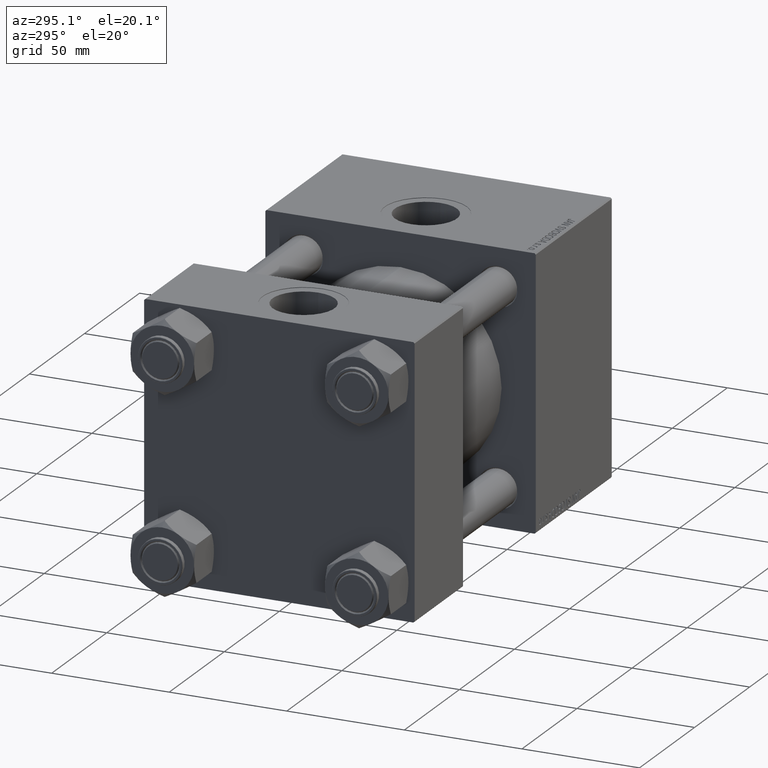
[diagram: clean part render]
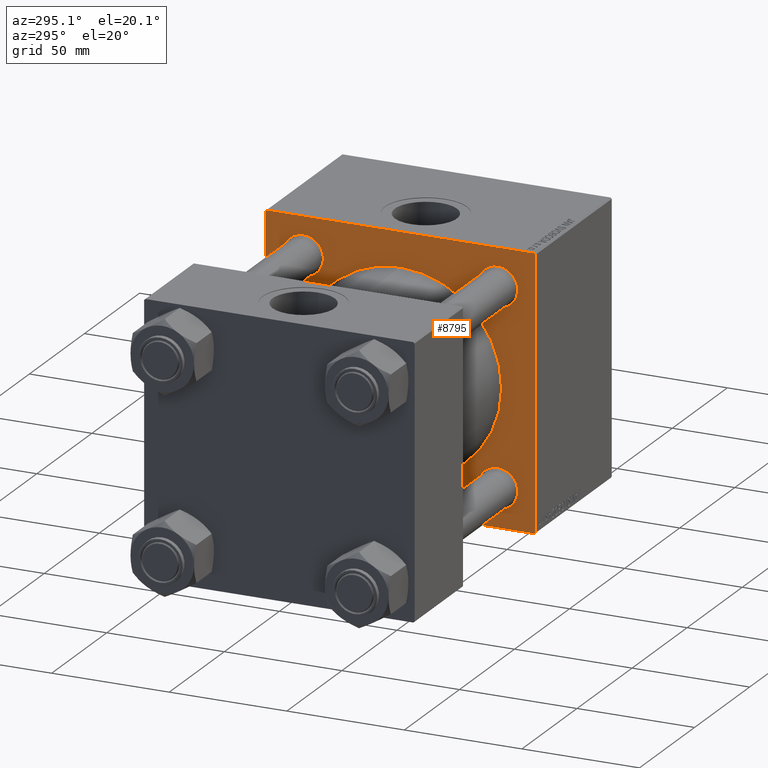
[diagram: same view with one face highlighted and labeled with its STEP entity id]
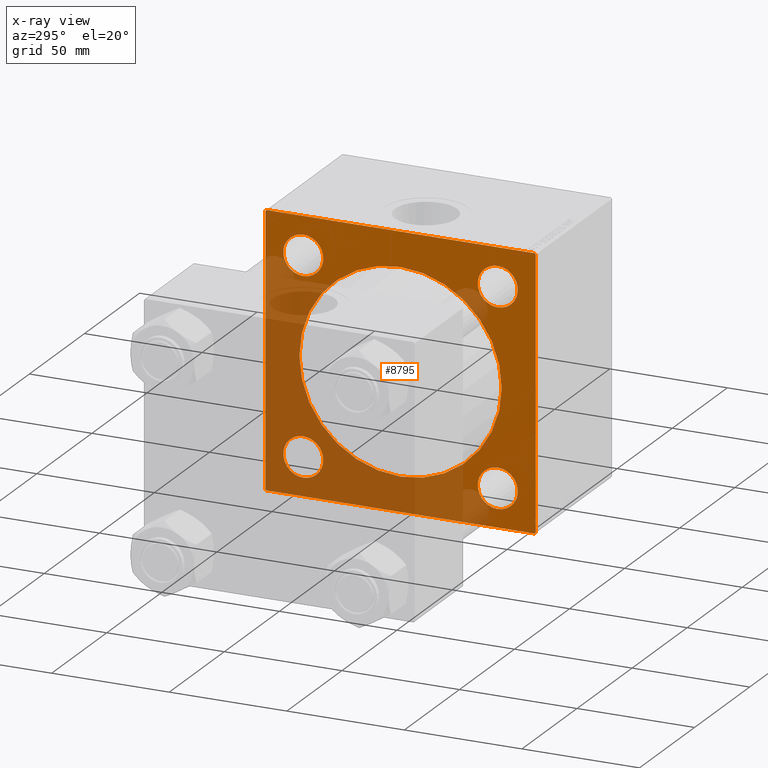
[diagram: x-ray of the same camera — body ghosted, the highlighted face saturated]
A machine part, auxiliary view. The second image highlights one B-rep face of the part: STEP entity #8795.
The next image is the same camera in x-ray: the body ghosted, the highlighted face saturated — about 46% of this face is hidden behind the body in this view.
In plain terms, the highlighted planar face has unit normal (-1, 0, 0).
Its self-contained STEP definition (entity closure, byte-faithful):
#392 = CARTESIAN_POINT ( 'NONE',  ( 110.0000000000000000, 41.34999999999999432, -41.35000000000000142 ) ) ;
#714 = AXIS2_PLACEMENT_3D ( 'NONE', #10741, #14341, #7134 ) ;
#852 = CIRCLE ( 'NONE', #29531, 43.00000000000000000 ) ;
#1827 = DIRECTION ( 'NONE',  ( 0.000000000000000000, 0.7071067811865672237, -0.7071067811865279218 ) ) ;
#2166 = VERTEX_POINT ( 'NONE', #24814 ) ;
#2169 = VECTOR ( 'NONE', #44819, 1000.000000000000000 ) ;
#3007 = AXIS2_PLACEMENT_3D ( 'NONE', #38558, #6696, #14914 ) ;
#3087 = DIRECTION ( 'NONE',  ( 0.000000000000000000, -1.000000000000000000, -1.206764157201257291E-16 ) ) ;
#3798 = LINE ( 'NONE', #39266, #33658 ) ;
#4489 = DIRECTION ( 'NONE',  ( -0.000000000000000000, -0.7071067811865279218, -0.7071067811865672237 ) ) ;
#4784 = EDGE_CURVE ( 'NONE', #38209, #32217, #21008, .T. ) ;
#4790 = CARTESIAN_POINT ( 'NONE',  ( 110.0000000000000000, -57.49999999999999289, 56.99999999999996447 ) ) ;
#5260 = LINE ( 'NONE', #44073, #2169 ) ;
#5384 = ORIENTED_EDGE ( 'NONE', *, *, #42421, .T. ) ;
#5386 = ORIENTED_EDGE ( 'NONE', *, *, #17811, .T. ) ;
#5511 = CIRCLE ( 'NONE', #7964, 8.500000000000007105 ) ;
#5620 = AXIS2_PLACEMENT_3D ( 'NONE', #21193, #12749, #8894 ) ;
#5678 = CARTESIAN_POINT ( 'NONE',  ( 110.0000000000000000, -57.49999999999999289, 57.49999999999999289 ) ) ;
#6579 = CARTESIAN_POINT ( 'NONE',  ( 110.0000000000000000, -41.34999999999998721, 49.85000000000002274 ) ) ;
#6696 = DIRECTION ( 'NONE',  ( 1.000000000000000000, -0.000000000000000000, 0.000000000000000000 ) ) ;
#7134 = DIRECTION ( 'NONE',  ( -0.000000000000000000, 0.000000000000000000, 1.000000000000000000 ) ) ;
#7454 = AXIS2_PLACEMENT_3D ( 'NONE', #24131, #11817, #7955 ) ;
#7671 = CIRCLE ( 'NONE', #21631, 8.500000000000007105 ) ;
#7910 = ORIENTED_EDGE ( 'NONE', *, *, #31926, .T. ) ;
#7955 = DIRECTION ( 'NONE',  ( 0.000000000000000000, 0.000000000000000000, 1.000000000000000000 ) ) ;
#7964 = AXIS2_PLACEMENT_3D ( 'NONE', #33619, #14354, #18457 ) ;
#8795 = ADVANCED_FACE ( 'NONE', ( #10228, #49530, #38241, #34621, #22798, #30504 ), #15103, .T. ) ;
#8894 = DIRECTION ( 'NONE',  ( 0.000000000000000000, 0.000000000000000000, -1.000000000000000000 ) ) ;
#8982 = VERTEX_POINT ( 'NONE', #47908 ) ;
#8995 = CARTESIAN_POINT ( 'NONE',  ( 110.0000000000000000, 41.34999999999999432, 49.85000000000001563 ) ) ;
#9451 = EDGE_CURVE ( 'NONE', #47577, #45058, #44224, .T. ) ;
#9499 = VERTEX_POINT ( 'NONE', #17098 ) ;
#10228 = FACE_BOUND ( 'NONE', #36465, .T. ) ;
#10741 = CARTESIAN_POINT ( 'NONE',  ( 110.0000000000000000, 0.000000000000000000, 0.000000000000000000 ) ) ;
#11050 = DIRECTION ( 'NONE',  ( 0.000000000000000000, 0.000000000000000000, 1.000000000000000000 ) ) ;
#11317 = CARTESIAN_POINT ( 'NONE',  ( 110.0000000000000000, 57.50000000000000000, 57.50000000000000711 ) ) ;
#11323 = LINE ( 'NONE', #43436, #14782 ) ;
#11817 = DIRECTION ( 'NONE',  ( 1.000000000000000000, -0.000000000000000000, 0.000000000000000000 ) ) ;
#12324 = ORIENTED_EDGE ( 'NONE', *, *, #44292, .T. ) ;
#12749 = DIRECTION ( 'NONE',  ( 1.000000000000000000, 0.000000000000000000, 0.000000000000000000 ) ) ;
#12977 = VERTEX_POINT ( 'NONE', #16418 ) ;
#13200 = VERTEX_POINT ( 'NONE', #4790 ) ;
#13340 = EDGE_LOOP ( 'NONE', ( #35105, #12324, #44576, #23606, #47406, #47871, #32586, #20752 ) ) ;
#13406 = VECTOR ( 'NONE', #1827, 1000.000000000000000 ) ;
#13630 = CARTESIAN_POINT ( 'NONE',  ( 110.0000000000000000, 57.50000000000000000, 57.50000000000000711 ) ) ;
#13902 = DIRECTION ( 'NONE',  ( 0.000000000000000000, 0.000000000000000000, -1.000000000000000000 ) ) ;
#14341 = DIRECTION ( 'NONE',  ( -1.000000000000000000, 0.000000000000000000, -0.000000000000000000 ) ) ;
#14354 = DIRECTION ( 'NONE',  ( 1.000000000000000000, -0.000000000000000000, 0.000000000000000000 ) ) ;
#14782 = VECTOR ( 'NONE', #31596, 1000.000000000000000 ) ;
#14914 = DIRECTION ( 'NONE',  ( 0.000000000000000000, 0.000000000000000000, 1.000000000000000000 ) ) ;
#15103 = PLANE ( 'NONE',  #714 ) ;
#15135 = EDGE_CURVE ( 'NONE', #18161, #30245, #30402, .T. ) ;
#15163 = LINE ( 'NONE', #11317, #25661 ) ;
#15905 = EDGE_CURVE ( 'NONE', #13200, #8982, #40886, .T. ) ;
#16418 = CARTESIAN_POINT ( 'NONE',  ( 110.0000000000000000, -56.99999999999995737, -57.49999999999997868 ) ) ;
#16510 = DIRECTION ( 'NONE',  ( 0.000000000000000000, 0.000000000000000000, -1.000000000000000000 ) ) ;
#16919 = ORIENTED_EDGE ( 'NONE', *, *, #4784, .T. ) ;
#17098 = CARTESIAN_POINT ( 'NONE',  ( 110.0000000000000000, 57.50000000000000000, -56.99999999999994316 ) ) ;
#17373 = ORIENTED_EDGE ( 'NONE', *, *, #36360, .T. ) ;
#17428 = VERTEX_POINT ( 'NONE', #50723 ) ;
#17811 = EDGE_CURVE ( 'NONE', #29533, #2166, #48565, .T. ) ;
#18150 = AXIS2_PLACEMENT_3D ( 'NONE', #18497, #38297, #11050 ) ;
#18161 = VERTEX_POINT ( 'NONE', #8995 ) ;
#18457 = DIRECTION ( 'NONE',  ( 0.000000000000000000, 0.000000000000000000, 1.000000000000000000 ) ) ;
#18497 = CARTESIAN_POINT ( 'NONE',  ( 110.0000000000000000, -41.34999999999998721, -41.35000000000000853 ) ) ;
#18694 = CARTESIAN_POINT ( 'NONE',  ( 110.0000000000000000, -41.34999999999998721, 32.85000000000000142 ) ) ;
#20151 = VECTOR ( 'NONE', #4489, 1000.000000000000000 ) ;
#20513 = ORIENTED_EDGE ( 'NONE', *, *, #49992, .T. ) ;
#20611 = EDGE_CURVE ( 'NONE', #17428, #28221, #45489, .T. ) ;
#20752 = ORIENTED_EDGE ( 'NONE', *, *, #28494, .T. ) ;
#20953 = CARTESIAN_POINT ( 'NONE',  ( 110.0000000000000000, 57.00000000000000000, -57.49999999999996447 ) ) ;
#21008 = CIRCLE ( 'NONE', #28390, 8.500000000000007105 ) ;
#21193 = CARTESIAN_POINT ( 'NONE',  ( 110.0000000000000000, -2.602085213965210642E-15, 0.000000000000000000 ) ) ;
#21631 = AXIS2_PLACEMENT_3D ( 'NONE', #44454, #24155, #39850 ) ;
#21882 = EDGE_CURVE ( 'NONE', #2166, #29533, #7671, .T. ) ;
#22246 = CIRCLE ( 'NONE', #18150, 8.500000000000007105 ) ;
#22424 = CARTESIAN_POINT ( 'NONE',  ( 110.0000000000000000, 41.34999999999999432, -32.84999999999999432 ) ) ;
#22798 = FACE_BOUND ( 'NONE', #48074, .T. ) ;
#22803 = DIRECTION ( 'NONE',  ( 0.000000000000000000, -1.000000000000000000, -1.206764157201257291E-16 ) ) ;
#23423 = EDGE_CURVE ( 'NONE', #17428, #35769, #15163, .T. ) ;
#23606 = ORIENTED_EDGE ( 'NONE', *, *, #24073, .T. ) ;
#23917 = VECTOR ( 'NONE', #13902, 1000.000000000000000 ) ;
#24073 = EDGE_CURVE ( 'NONE', #13200, #35769, #5260, .T. ) ;
#24131 = CARTESIAN_POINT ( 'NONE',  ( 110.0000000000000000, 41.34999999999999432, 41.35000000000000142 ) ) ;
#24155 = DIRECTION ( 'NONE',  ( 1.000000000000000000, -0.000000000000000000, 0.000000000000000000 ) ) ;
#24210 = CARTESIAN_POINT ( 'NONE',  ( 110.0000000000000000, -56.99999999999998579, 57.49999999999999289 ) ) ;
#24544 = VECTOR ( 'NONE', #39882, 1000.000000000000000 ) ;
#24814 = CARTESIAN_POINT ( 'NONE',  ( 110.0000000000000000, 41.34999999999999432, -49.85000000000001563 ) ) ;
#25451 = CARTESIAN_POINT ( 'NONE',  ( 110.0000000000000000, 57.24999999999840838, 57.25000000000159162 ) ) ;
#25661 = VECTOR ( 'NONE', #3087, 1000.000000000000000 ) ;
#27050 = AXIS2_PLACEMENT_3D ( 'NONE', #43433, #47530, #31079 ) ;
#27880 = CARTESIAN_POINT ( 'NONE',  ( 110.0000000000000000, 2.663896022368408223E-15, -43.00000000000000000 ) ) ;
#28086 = ORIENTED_EDGE ( 'NONE', *, *, #43244, .T. ) ;
#28221 = VERTEX_POINT ( 'NONE', #34614 ) ;
#28390 = AXIS2_PLACEMENT_3D ( 'NONE', #31105, #46786, #50640 ) ;
#28494 = EDGE_CURVE ( 'NONE', #9499, #47483, #39966, .T. ) ;
#28515 = CARTESIAN_POINT ( 'NONE',  ( 110.0000000000000000, 41.34999999999999432, 32.84999999999999432 ) ) ;
#28563 = CARTESIAN_POINT ( 'NONE',  ( 110.0000000000000000, -2.602085213965210642E-15, 0.000000000000000000 ) ) ;
#28873 = AXIS2_PLACEMENT_3D ( 'NONE', #392, #31475, #35083 ) ;
#29531 = AXIS2_PLACEMENT_3D ( 'NONE', #28563, #48095, #16510 ) ;
#29533 = VERTEX_POINT ( 'NONE', #22424 ) ;
#30064 = CIRCLE ( 'NONE', #3007, 8.500000000000007105 ) ;
#30245 = VERTEX_POINT ( 'NONE', #28515 ) ;
#30402 = CIRCLE ( 'NONE', #7454, 8.500000000000007105 ) ;
#30504 = FACE_OUTER_BOUND ( 'NONE', #13340, .T. ) ;
#30649 = EDGE_LOOP ( 'NONE', ( #20513, #7910 ) ) ;
#30765 = ORIENTED_EDGE ( 'NONE', *, *, #15135, .T. ) ;
#30785 = ORIENTED_EDGE ( 'NONE', *, *, #9451, .T. ) ;
#31079 = DIRECTION ( 'NONE',  ( 0.000000000000000000, 0.000000000000000000, 1.000000000000000000 ) ) ;
#31105 = CARTESIAN_POINT ( 'NONE',  ( 110.0000000000000000, -41.34999999999998721, 41.35000000000000853 ) ) ;
#31475 = DIRECTION ( 'NONE',  ( 1.000000000000000000, -0.000000000000000000, 0.000000000000000000 ) ) ;
#31596 = DIRECTION ( 'NONE',  ( 0.000000000000000000, -0.7071067811865721087, 0.7071067811865230368 ) ) ;
#31926 = EDGE_CURVE ( 'NONE', #35404, #35539, #30064, .T. ) ;
#32217 = VERTEX_POINT ( 'NONE', #6579 ) ;
#32586 = ORIENTED_EDGE ( 'NONE', *, *, #40554, .T. ) ;
#33619 = CARTESIAN_POINT ( 'NONE',  ( 110.0000000000000000, 41.34999999999999432, 41.35000000000000142 ) ) ;
#33658 = VECTOR ( 'NONE', #22803, 1000.000000000000000 ) ;
#34050 = CARTESIAN_POINT ( 'NONE',  ( 110.0000000000000000, -41.34999999999998721, -49.85000000000002274 ) ) ;
#34614 = CARTESIAN_POINT ( 'NONE',  ( 110.0000000000000000, 57.50000000000000000, 57.00000000000000711 ) ) ;
#34621 = FACE_BOUND ( 'NONE', #30649, .T. ) ;
#35083 = DIRECTION ( 'NONE',  ( 0.000000000000000000, 0.000000000000000000, 1.000000000000000000 ) ) ;
#35105 = ORIENTED_EDGE ( 'NONE', *, *, #43769, .T. ) ;
#35404 = VERTEX_POINT ( 'NONE', #34050 ) ;
#35539 = VERTEX_POINT ( 'NONE', #39200 ) ;
#35769 = VERTEX_POINT ( 'NONE', #24210 ) ;
#36360 = EDGE_CURVE ( 'NONE', #30245, #18161, #5511, .T. ) ;
#36465 = EDGE_LOOP ( 'NONE', ( #5384, #16919 ) ) ;
#37751 = CIRCLE ( 'NONE', #27050, 8.500000000000007105 ) ;
#38209 = VERTEX_POINT ( 'NONE', #18694 ) ;
#38241 = FACE_BOUND ( 'NONE', #45202, .T. ) ;
#38297 = DIRECTION ( 'NONE',  ( 1.000000000000000000, -0.000000000000000000, 0.000000000000000000 ) ) ;
#38558 = CARTESIAN_POINT ( 'NONE',  ( 110.0000000000000000, -41.34999999999998721, -41.35000000000000853 ) ) ;
#39200 = CARTESIAN_POINT ( 'NONE',  ( 110.0000000000000000, -41.34999999999998721, -32.85000000000000142 ) ) ;
#39266 = CARTESIAN_POINT ( 'NONE',  ( 110.0000000000000000, 57.50000000000000000, -57.49999999999996447 ) ) ;
#39850 = DIRECTION ( 'NONE',  ( 0.000000000000000000, 0.000000000000000000, 1.000000000000000000 ) ) ;
#39882 = DIRECTION ( 'NONE',  ( 0.000000000000000000, 0.000000000000000000, -1.000000000000000000 ) ) ;
#39966 = LINE ( 'NONE', #43302, #20151 ) ;
#40554 = EDGE_CURVE ( 'NONE', #28221, #9499, #48814, .T. ) ;
#40886 = LINE ( 'NONE', #5678, #23917 ) ;
#42421 = EDGE_CURVE ( 'NONE', #32217, #38209, #37751, .T. ) ;
#43244 = EDGE_CURVE ( 'NONE', #45058, #47577, #852, .T. ) ;
#43302 = CARTESIAN_POINT ( 'NONE',  ( 110.0000000000000000, 57.25000000000157030, -57.24999999999838707 ) ) ;
#43433 = CARTESIAN_POINT ( 'NONE',  ( 110.0000000000000000, -41.34999999999998721, 41.35000000000000853 ) ) ;
#43436 = CARTESIAN_POINT ( 'NONE',  ( 110.0000000000000000, -57.24999999999798916, -57.25000000000196820 ) ) ;
#43769 = EDGE_CURVE ( 'NONE', #47483, #12977, #3798, .T. ) ;
#44073 = CARTESIAN_POINT ( 'NONE',  ( 110.0000000000000000, -57.25000000000117240, 57.24999999999879208 ) ) ;
#44224 = CIRCLE ( 'NONE', #5620, 43.00000000000000000 ) ;
#44292 = EDGE_CURVE ( 'NONE', #12977, #8982, #11323, .T. ) ;
#44454 = CARTESIAN_POINT ( 'NONE',  ( 110.0000000000000000, 41.34999999999999432, -41.35000000000000142 ) ) ;
#44576 = ORIENTED_EDGE ( 'NONE', *, *, #15905, .F. ) ;
#44819 = DIRECTION ( 'NONE',  ( -0.000000000000000000, 0.7071067811865328068, 0.7071067811865622277 ) ) ;
#45058 = VERTEX_POINT ( 'NONE', #27880 ) ;
#45202 = EDGE_LOOP ( 'NONE', ( #5386, #48143 ) ) ;
#45489 = LINE ( 'NONE', #25451, #13406 ) ;
#46274 = EDGE_LOOP ( 'NONE', ( #30765, #17373 ) ) ;
#46786 = DIRECTION ( 'NONE',  ( 1.000000000000000000, -0.000000000000000000, 0.000000000000000000 ) ) ;
#47406 = ORIENTED_EDGE ( 'NONE', *, *, #23423, .F. ) ;
#47483 = VERTEX_POINT ( 'NONE', #20953 ) ;
#47530 = DIRECTION ( 'NONE',  ( 1.000000000000000000, -0.000000000000000000, 0.000000000000000000 ) ) ;
#47577 = VERTEX_POINT ( 'NONE', #48453 ) ;
#47871 = ORIENTED_EDGE ( 'NONE', *, *, #20611, .T. ) ;
#47908 = CARTESIAN_POINT ( 'NONE',  ( 110.0000000000000000, -57.49999999999999289, -56.99999999999997868 ) ) ;
#48074 = EDGE_LOOP ( 'NONE', ( #30785, #28086 ) ) ;
#48095 = DIRECTION ( 'NONE',  ( 1.000000000000000000, 0.000000000000000000, 0.000000000000000000 ) ) ;
#48143 = ORIENTED_EDGE ( 'NONE', *, *, #21882, .T. ) ;
#48453 = CARTESIAN_POINT ( 'NONE',  ( 110.0000000000000000, -2.602085213965210642E-15, 43.00000000000000000 ) ) ;
#48565 = CIRCLE ( 'NONE', #28873, 8.500000000000007105 ) ;
#48814 = LINE ( 'NONE', #13630, #24544 ) ;
#49530 = FACE_BOUND ( 'NONE', #46274, .T. ) ;
#49992 = EDGE_CURVE ( 'NONE', #35539, #35404, #22246, .T. ) ;
#50640 = DIRECTION ( 'NONE',  ( 0.000000000000000000, 0.000000000000000000, 1.000000000000000000 ) ) ;
#50723 = CARTESIAN_POINT ( 'NONE',  ( 110.0000000000000000, 56.99999999999997158, 57.50000000000000711 ) ) ;